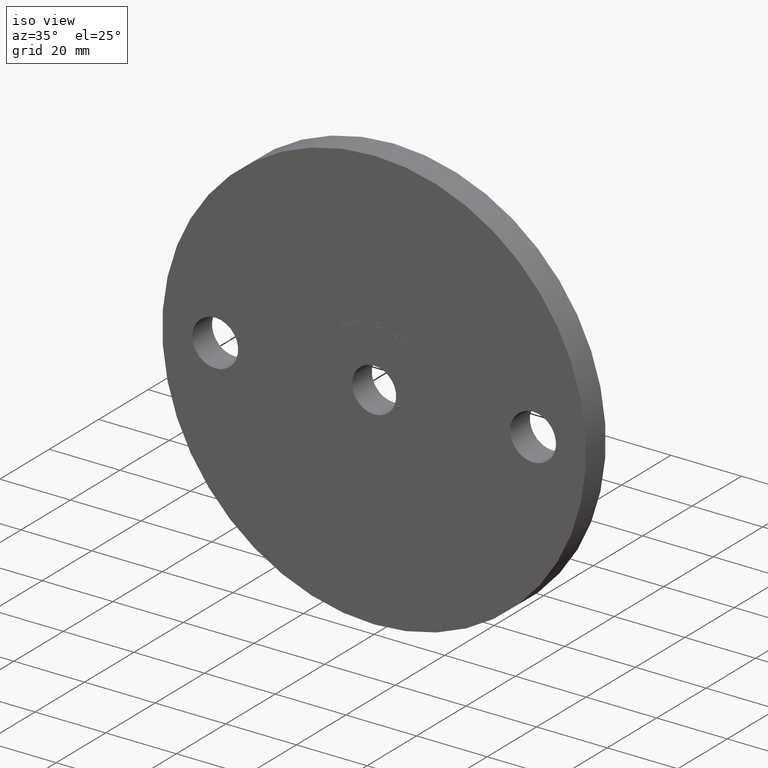
[diagram: clean part render]
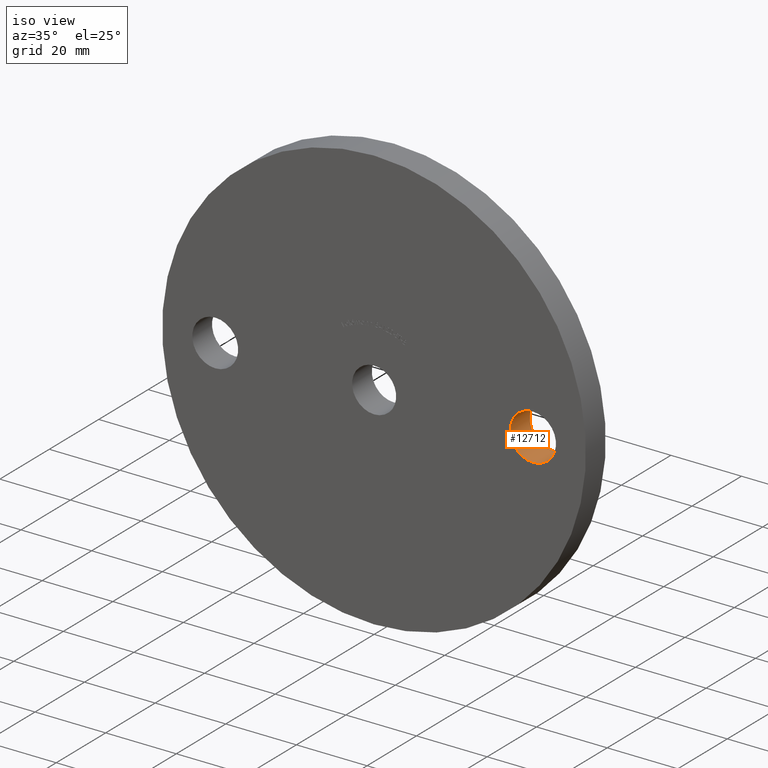
[diagram: same view with one face highlighted and labeled with its STEP entity id]
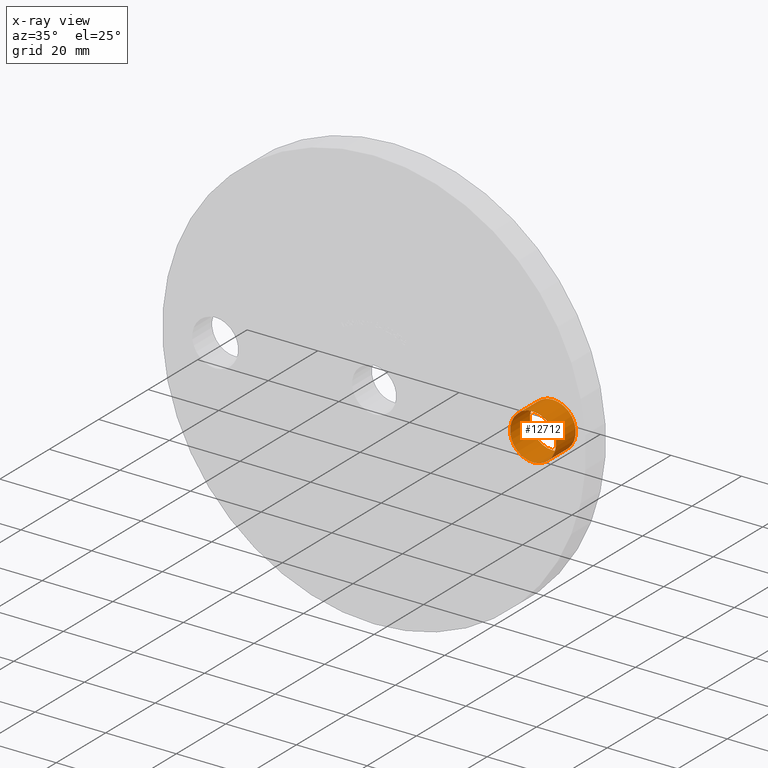
[diagram: x-ray of the same camera — body ghosted, the highlighted face saturated]
A machine part, iso view. The second image highlights one B-rep face of the part: STEP entity #12712.
The next image is the same camera in x-ray: the body ghosted, the highlighted face saturated — about 0% of this face is hidden behind the body in this view.
In plain terms, the highlighted cylindrical surface (bore or boss wall) has radius 6.5 mm, axis along (-0, 1, -0).
Its self-contained STEP definition (entity closure, byte-faithful):
#36 = AXIS2_PLACEMENT_3D ( 'NONE', #4740, #2672, #12409 ) ;
#213 = AXIS2_PLACEMENT_3D ( 'NONE', #7060, #2127, #11921 ) ;
#2127 = DIRECTION ( 'NONE',  ( -0.000000000000000000, 1.000000000000000000, -0.000000000000000000 ) ) ;
#2361 = FACE_OUTER_BOUND ( 'NONE', #7898, .T. ) ;
#2672 = DIRECTION ( 'NONE',  ( 0.000000000000000000, 1.000000000000000000, 0.000000000000000000 ) ) ;
#3191 = AXIS2_PLACEMENT_3D ( 'NONE', #11113, #10286, #5425 ) ;
#3471 = CIRCLE ( 'NONE', #3191, 6.500000000000000888 ) ;
#3924 = CIRCLE ( 'NONE', #36, 6.500000000000000888 ) ;
#3984 = CARTESIAN_POINT ( 'NONE',  ( 45.00000000000000000, 8.000000000000000000, 6.499999999999989342 ) ) ;
#4040 = ORIENTED_EDGE ( 'NONE', *, *, #10690, .T. ) ;
#4740 = CARTESIAN_POINT ( 'NONE',  ( 45.00000000000000000, 8.000000000000000000, -1.102182119232617911E-14 ) ) ;
#5302 = FACE_OUTER_BOUND ( 'NONE', #10677, .T. ) ;
#5425 = DIRECTION ( 'NONE',  ( 0.000000000000000000, 0.000000000000000000, 1.000000000000000000 ) ) ;
#7060 = CARTESIAN_POINT ( 'NONE',  ( 45.00000000000000000, 0.000000000000000000, -1.102182119232617911E-14 ) ) ;
#7618 = ORIENTED_EDGE ( 'NONE', *, *, #11346, .F. ) ;
#7898 = EDGE_LOOP ( 'NONE', ( #7618 ) ) ;
#8829 = VERTEX_POINT ( 'NONE', #10850 ) ;
#10286 = DIRECTION ( 'NONE',  ( 0.000000000000000000, 1.000000000000000000, 0.000000000000000000 ) ) ;
#10677 = EDGE_LOOP ( 'NONE', ( #4040 ) ) ;
#10690 = EDGE_CURVE ( 'NONE', #11129, #11129, #3924, .T. ) ;
#10850 = CARTESIAN_POINT ( 'NONE',  ( 45.00000000000000000, 0.000000000000000000, 6.499999999999989342 ) ) ;
#11113 = CARTESIAN_POINT ( 'NONE',  ( 45.00000000000000000, 0.000000000000000000, -1.102182119232617911E-14 ) ) ;
#11129 = VERTEX_POINT ( 'NONE', #3984 ) ;
#11346 = EDGE_CURVE ( 'NONE', #8829, #8829, #3471, .T. ) ;
#11921 = DIRECTION ( 'NONE',  ( 0.000000000000000000, 0.000000000000000000, 1.000000000000000000 ) ) ;
#12192 = CYLINDRICAL_SURFACE ( 'NONE', #213, 6.500000000000000888 ) ;
#12409 = DIRECTION ( 'NONE',  ( 0.000000000000000000, 0.000000000000000000, 1.000000000000000000 ) ) ;
#12712 = ADVANCED_FACE ( 'NONE', ( #2361, #5302 ), #12192, .F. ) ;